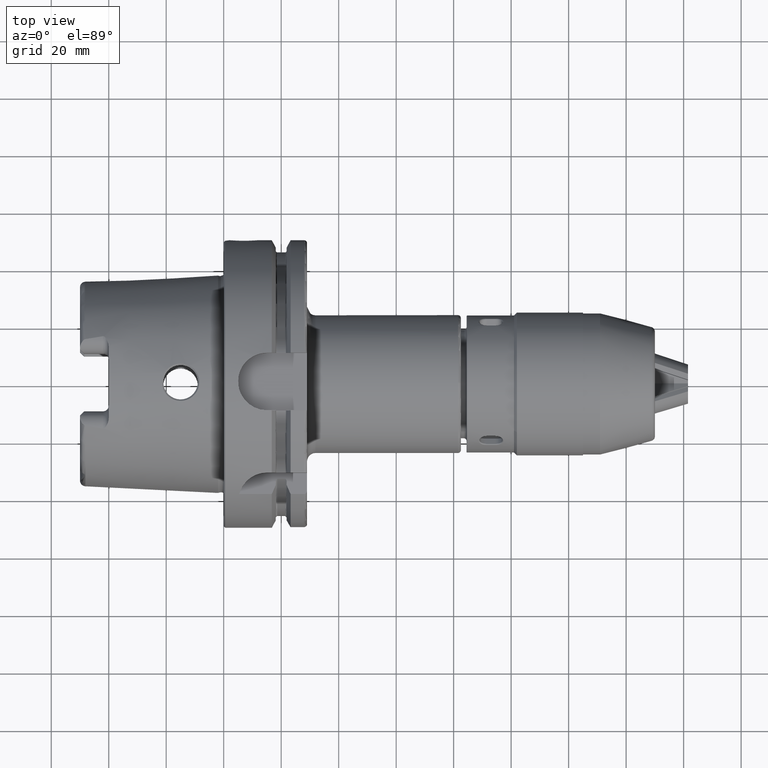
[diagram: clean part render]
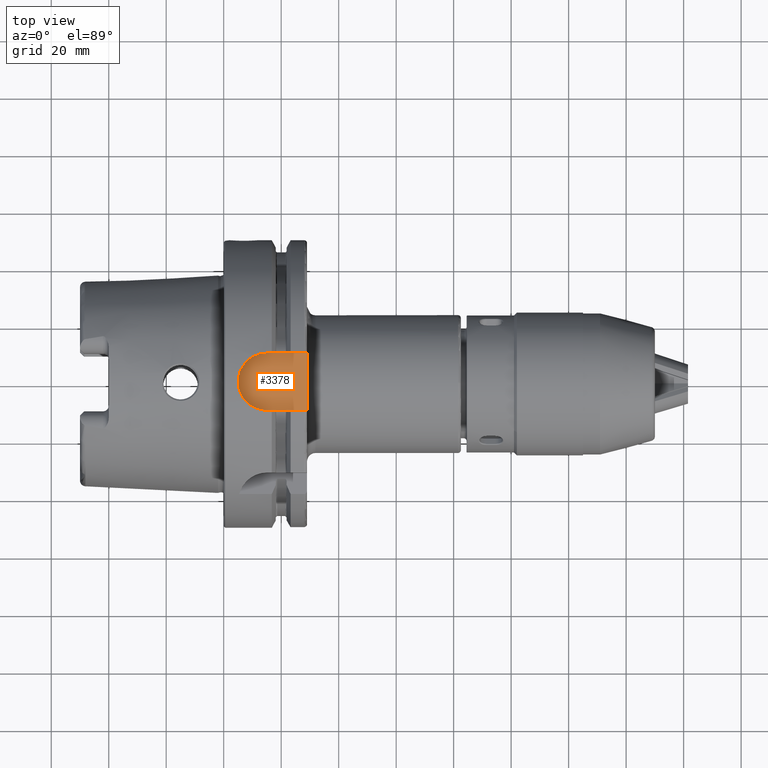
[diagram: same view with one face highlighted and labeled with its STEP entity id]
A machine part, top view. The second image highlights one B-rep face of the part: STEP entity #3378.
In plain terms, the highlighted planar face has unit normal (0, 0, 1).
Its self-contained STEP definition (entity closure, byte-faithful):
#234=PLANE('',#3839);
#304=LINE('',#5181,#532);
#377=LINE('',#6435,#605);
#380=LINE('',#6442,#608);
#532=VECTOR('',#4135,10.);
#605=VECTOR('',#4478,10.);
#608=VECTOR('',#4487,10.);
#879=FACE_OUTER_BOUND('',#1093,.T.);
#1093=EDGE_LOOP('',(#2660,#2661,#2662,#2663));
#1319=CIRCLE('',#3837,10.);
#1440=VERTEX_POINT('',#5178);
#1441=VERTEX_POINT('',#5180);
#1591=VERTEX_POINT('',#6434);
#1592=VERTEX_POINT('',#6438);
#1771=EDGE_CURVE('',#1440,#1441,#304,.T.);
#1982=EDGE_CURVE('',#1591,#1441,#377,.T.);
#1984=EDGE_CURVE('',#1592,#1591,#1319,.T.);
#1986=EDGE_CURVE('',#1440,#1592,#380,.T.);
#2660=ORIENTED_EDGE('',*,*,#1986,.T.);
#2661=ORIENTED_EDGE('',*,*,#1984,.T.);
#2662=ORIENTED_EDGE('',*,*,#1982,.T.);
#2663=ORIENTED_EDGE('',*,*,#1771,.F.);
#3378=ADVANCED_FACE('',(#879),#234,.T.);
#3837=AXIS2_PLACEMENT_3D('',#6439,#4482,#4483);
#3839=AXIS2_PLACEMENT_3D('',#6443,#4488,#4489);
#4135=DIRECTION('',(0.,-1.,0.));
#4478=DIRECTION('',(1.,7.93016446160826E-17,0.));
#4482=DIRECTION('center_axis',(0.,0.,1.));
#4483=DIRECTION('ref_axis',(0.,1.,0.));
#4487=DIRECTION('',(-1.,0.,0.));
#4488=DIRECTION('center_axis',(0.,0.,1.));
#4489=DIRECTION('ref_axis',(1.,0.,0.));
#5178=CARTESIAN_POINT('',(29.,10.,44.));
#5180=CARTESIAN_POINT('',(29.,-10.,44.));
#5181=CARTESIAN_POINT('',(29.,0.,44.));
#6434=CARTESIAN_POINT('',(15.,-10.,44.));
#6435=CARTESIAN_POINT('',(15.,-10.,44.));
#6438=CARTESIAN_POINT('',(15.,10.,44.));
#6439=CARTESIAN_POINT('Origin',(15.,0.,44.));
#6442=CARTESIAN_POINT('',(29.,10.,44.));
#6443=CARTESIAN_POINT('Origin',(17.,0.,44.));